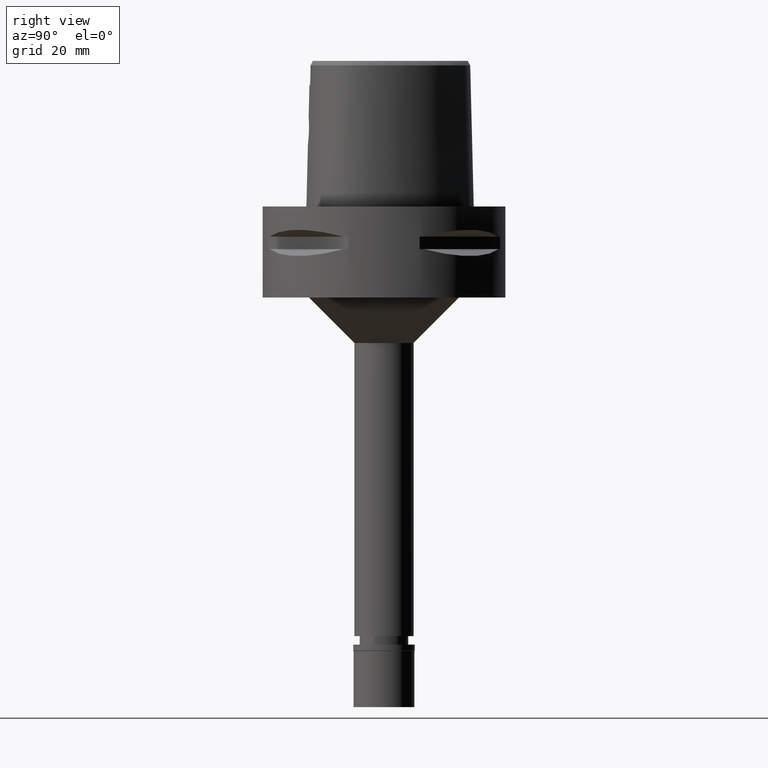
[diagram: clean part render]
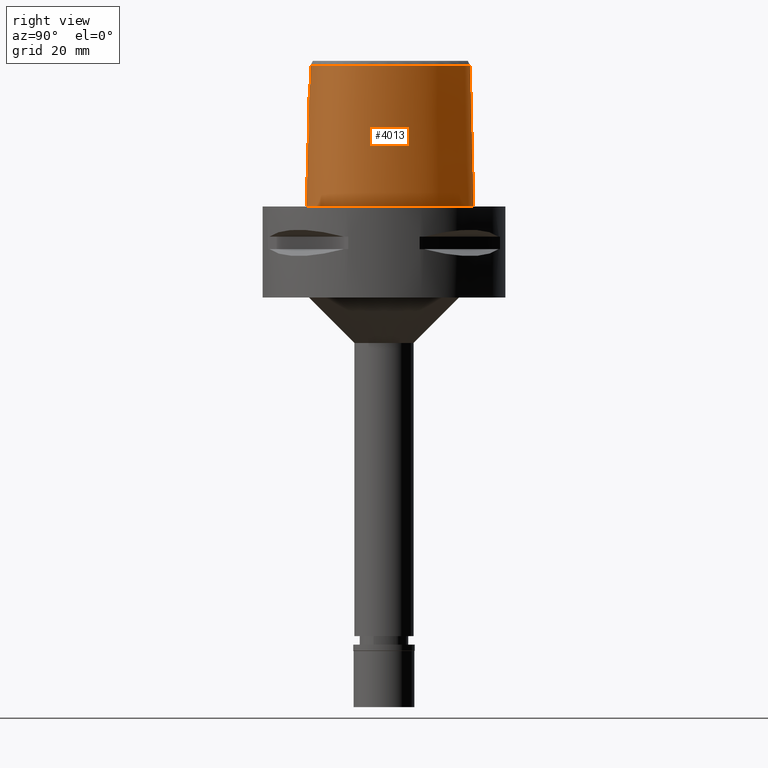
[diagram: same view with one face highlighted and labeled with its STEP entity id]
A machine part, right view. The second image highlights one B-rep face of the part: STEP entity #4013.
In plain terms, the highlighted face is a freeform B-spline surface patch.
Its self-contained STEP definition (entity closure, byte-faithful):
#15 = CARTESIAN_POINT ( 'NONE',  ( 22.86810880156999914, -17.21714034637999902, 31.32395511042999914 ) ) ;
#42 = CARTESIAN_POINT ( 'NONE',  ( 9.105791459224999329, 26.46675913453000106, 15.19677030110000082 ) ) ;
#43 = CARTESIAN_POINT ( 'NONE',  ( 2.697261088284437669, -24.96604596303028600, 21.33198344650132938 ) ) ;
#65 = CARTESIAN_POINT ( 'NONE',  ( 25.65830880232000055, -14.81383149398999954, -0.9304145082307000436 ) ) ;
#66 = CARTESIAN_POINT ( 'NONE',  ( 4.544345534604060433, -24.73984392723427206, 24.75509518056023239 ) ) ;
#91 = CARTESIAN_POINT ( 'NONE',  ( 26.79474625850000180, 1.906447387535000093, -0.9304145082307000436 ) ) ;
#93 = CARTESIAN_POINT ( 'NONE',  ( 2.890648186359348948, -24.95092863274541273, 21.48525694161353172 ) ) ;
#120 = CARTESIAN_POINT ( 'NONE',  ( 3.739368471919711112, -24.86915408846632758, 22.40675187304718818 ) ) ;
#143 = CARTESIAN_POINT ( 'NONE',  ( 3.512978482355693099, -24.74890643940160473, 27.89278862330787234 ) ) ;
#184 = B_SPLINE_CURVE_WITH_KNOTS ( 'NONE', 3,
 ( #1542, #3118, #4635, #2711 ),
 .UNSPECIFIED., .F., .F.,
 ( 4, 4 ),
 ( 0.0000000000000000000, 1.000000000000000000 ),
 .UNSPECIFIED. ) ;
#202 = CARTESIAN_POINT ( 'NONE',  ( 2.592678685478296607, -24.78641481269938041, 28.73923899945383198 ) ) ;
#219 = CARTESIAN_POINT ( 'NONE',  ( 26.53043812451278072, -3.252830914798715334, 46.52070254359992418 ) ) ;
#220 = VERTEX_POINT ( 'NONE', #3888 ) ;
#224 = CARTESIAN_POINT ( 'NONE',  ( 2.832428424601348915, -24.77719445135581466, 28.56165880794238632 ) ) ;
#239 = CARTESIAN_POINT ( 'NONE',  ( 13.63304938780408371, 22.11238814014079423, 46.52071155953441917 ) ) ;
#246 = CARTESIAN_POINT ( 'NONE',  ( 1.372734075386999954E-14, -24.83629963747999980, 29.55000000000000071 ) ) ;
#270 = CARTESIAN_POINT ( 'NONE',  ( 17.84219066873808046, -20.48406917474436284, 46.52069465465727660 ) ) ;
#278 = CARTESIAN_POINT ( 'NONE',  ( 3.237005511786298584, -24.76067832112077838, 28.19756469887087036 ) ) ;
#298 = CARTESIAN_POINT ( 'NONE',  ( 1.375467128702948072, 28.41206022878001747, 46.52071663099752641 ) ) ;
#311 = CARTESIAN_POINT ( 'NONE',  ( -0.8321552616391999502, -24.38153493001000172, 47.45113991977000012 ) ) ;
#366 = CARTESIAN_POINT ( 'NONE',  ( 18.17462484264999745, -20.76404275752999951, 31.32395511042999914 ) ) ;
#397 = CARTESIAN_POINT ( 'NONE',  ( 6.584202213355000666, -24.46732445131999967, 31.32395511042999914 ) ) ;
#419 = CARTESIAN_POINT ( 'NONE',  ( 3.154109046673999828, 29.36302093452000150, -0.9304145082307000436 ) ) ;
#429 = CARTESIAN_POINT ( 'NONE',  ( 22.33885471494222585, 12.89734378305838369, -2.633948435770173957E-06 ) ) ;
#451 = CARTESIAN_POINT ( 'NONE',  ( 25.23075706254999773, 6.836210430863999932, -0.9304145082307000436 ) ) ;
#452 = CARTESIAN_POINT ( 'NONE',  ( 3.051956606900725788, -24.93748982820225990, 21.62510482542859336 ) ) ;
#474 = CARTESIAN_POINT ( 'NONE',  ( 3.067023395837999988, 28.96669973618000071, 15.19677030110000082 ) ) ;
#475 = CARTESIAN_POINT ( 'NONE',  ( 4.547962263617892908, -24.73685171198798471, 24.85950514487635132 ) ) ;
#497 = CARTESIAN_POINT ( 'NONE',  ( 8.683908142319999968, 25.77663438944999896, 47.45113991977000012 ) ) ;
#498 = CARTESIAN_POINT ( 'NONE',  ( 4.549979298456324983, -24.73407938846012399, 24.96161245962009900 ) ) ;
#529 = CARTESIAN_POINT ( 'NONE',  ( 2.192364263587874174, -25.00047163864958577, 21.00192190659234015 ) ) ;
#535 = EDGE_CURVE ( 'NONE', #5001, #558, #4162, .T. ) ;
#555 = CARTESIAN_POINT ( 'NONE',  ( 3.156365463052544396, -24.92830912253881337, 21.72269515073475787 ) ) ;
#558 = VERTEX_POINT ( 'NONE', #3130 ) ;
#561 = DIRECTION ( 'NONE',  ( 9.468170009258231965E-13, 0.02499051293976060906, -0.9996876883622242138 ) ) ;
#575 = CARTESIAN_POINT ( 'NONE',  ( 0.7047156100431000159, 28.82388502797000029, 31.32395511042999914 ) ) ;
#644 = CARTESIAN_POINT ( 'NONE',  ( 24.33934953590684813, -14.68006085516557846, 46.52069803563271222 ) ) ;
#663 = CARTESIAN_POINT ( 'NONE',  ( 20.76159157987547488, 13.99289103071739682, 46.52070817855897644 ) ) ;
#667 = VERTEX_POINT ( 'NONE', #4487 ) ;
#673 = ORIENTED_EDGE ( 'NONE', *, *, #918, .T. ) ;
#709 = CARTESIAN_POINT ( 'NONE',  ( 2.393561154394999946, -25.62160365948000162, -0.9304145082307000436 ) ) ;
#725 = ORIENTED_EDGE ( 'NONE', *, *, #3493, .F. ) ;
#732 = ORIENTED_EDGE ( 'NONE', *, *, #2981, .F. ) ;
#734 = CARTESIAN_POINT ( 'NONE',  ( 21.19046238476000354, -19.29498366068000337, 15.19677030110000082 ) ) ;
#790 = CARTESIAN_POINT ( 'NONE',  ( 6.695047936612000150, -25.26858194698999682, -0.9304145082307000436 ) ) ;
#791 = CARTESIAN_POINT ( 'NONE',  ( 0.5741109003791865506, -25.06046598330698671, 20.47661985235020055 ) ) ;
#818 = CARTESIAN_POINT ( 'NONE',  ( 16.83227267715999531, 18.76477910632999979, 47.45113991977000012 ) ) ;
#827 = CARTESIAN_POINT ( 'NONE',  ( 18.55019652241081118, -21.45394537051418382, -2.633948435770173957E-06 ) ) ;
#841 = CARTESIAN_POINT ( 'NONE',  ( 24.79336081513000067, -16.13554022498000151, -0.9304145082307000436 ) ) ;
#852 = CARTESIAN_POINT ( 'NONE',  ( 9.304563441065136331, 26.79191411885718210, -2.633948435770173957E-06 ) ) ;
#871 = CARTESIAN_POINT ( 'NONE',  ( 6.114741919704999695, 27.99897532370999897, 15.19677030110000082 ) ) ;
#872 = CARTESIAN_POINT ( 'NONE',  ( 4.550159243768820083, -24.72595648767389065, 25.28426205013430916 ) ) ;
#894 = EDGE_CURVE ( 'NONE', #220, #4710, #1196, .T. ) ;
#895 = CARTESIAN_POINT ( 'NONE',  ( 12.70057961977000183, 23.45048167898999836, 31.32395511042999914 ) ) ;
#896 = CARTESIAN_POINT ( 'NONE',  ( 1.726554843533688599, -25.02437791916835508, 20.79030502623852783 ) ) ;
#904 = CARTESIAN_POINT ( 'NONE',  ( 23.43253033493974868, -17.76420414757017952, -2.633948435770173957E-06 ) ) ;
#918 = EDGE_CURVE ( 'NONE', #3978, #220, #3244, .T. ) ;
#919 = CARTESIAN_POINT ( 'NONE',  ( 25.62380423755999814, 1.595558235737000174, 47.45113991977000012 ) ) ;
#920 = CARTESIAN_POINT ( 'NONE',  ( 4.496850936021979273, -24.75618253903773791, 24.29074513878774511 ) ) ;
#931 = CARTESIAN_POINT ( 'NONE',  ( 17.75297956281007217, 19.52218754203904894, -2.633948435770173957E-06 ) ) ;
#950 = CARTESIAN_POINT ( 'NONE',  ( 3.996558060057621820, -24.72854169055285922, 27.19514510551928765 ) ) ;
#985 = CARTESIAN_POINT ( 'NONE',  ( 3.083107003972846094, -24.50056602138366912, 40.00000010061336297 ) ) ;
#1003 = CARTESIAN_POINT ( 'NONE',  ( -0.5537150974278001181, 28.37988169223000057, 47.45113991977000012 ) ) ;
#1019 = CARTESIAN_POINT ( 'NONE',  ( 25.61240997289101173, -12.23358473965911131, 46.52069916262452409 ) ) ;
#1044 = CARTESIAN_POINT ( 'NONE',  ( 26.30769162470354061, -1.593520748816076971, 46.52070310709584788 ) ) ;
#1051 = CARTESIAN_POINT ( 'NONE',  ( 1.883305297007180190, -24.80958828430720686, 29.14211520707400638 ) ) ;
#1070 = CARTESIAN_POINT ( 'NONE',  ( 21.61408639850695224, -17.89738970854853051, 46.52069634514500507 ) ) ;
#1076 = CARTESIAN_POINT ( 'NONE',  ( 3.115833847005023305, -24.76582665838805752, 28.31908668410564189 ) ) ;
#1131 = CARTESIAN_POINT ( 'NONE',  ( 15.15935281694000025, -22.61055603243000078, 15.19677030110000082 ) ) ;
#1160 = CARTESIAN_POINT ( 'NONE',  ( -0.5548491714949000952, -24.38637853515999865, 47.45113991977000012 ) ) ;
#1174 = CARTESIAN_POINT ( 'NONE',  ( 8.153873202540852461, -23.84765792154892239, 46.52069127368189072 ) ) ;
#1196 = B_SPLINE_CURVE_WITH_KNOTS ( 'NONE', 3,
 ( #2806, #2829, #3709, #1613, #1252, #827, #1689, #904, #4415, #4864, #2097, #4815, #4108, #1714, #3683, #4393, #3294, #429, #931, #2497, #852, #2446, #4025, #3198, #3999 ),
 .UNSPECIFIED., .F., .F.,
 ( 4, 1, 1, 1, 1, 1, 1, 1, 1, 1, 1, 1, 1, 1, 1, 1, 1, 1, 1, 1, 1, 1, 4 ),
 ( 0.0000000000000000000, 0.08333333333340001148, 0.1250000000000000000, 0.1666666666667000196, 0.2083333333333000081, 0.2500000000000000000, 0.2916666666666999919, 0.3124999999998999689, 0.3333333333332000326, 0.3541666666666000163, 0.3749999999998999689, 0.4166666666666000163, 0.4583333333332000326, 0.4999999999997999933, 0.5416666666664999852, 0.5833333333331000015, 0.6666666666664999852, 0.7499999999997000177, 0.8333333333329999704, 0.8749999999995999866, 0.9166666666663000340, 0.9583333333329000503, 1.000000000000000000 ),
 .UNSPECIFIED. ) ;
#1218 = CARTESIAN_POINT ( 'NONE',  ( 24.10679980266999678, 6.379205525910999874, 47.45113991977000012 ) ) ;
#1224 = VECTOR ( 'NONE', #561, 1000.000000000000227 ) ;
#1243 = CARTESIAN_POINT ( 'NONE',  ( 2.892852094166000310, 28.17405733949000179, 47.45113991977000012 ) ) ;
#1252 = CARTESIAN_POINT ( 'NONE',  ( 15.29776368685573118, -22.96525396773072814, -2.633948435770173957E-06 ) ) ;
#1258 = CARTESIAN_POINT ( 'NONE',  ( -1.346037188249999996E-11, 28.41206021534999593, 46.52071719450999154 ) ) ;
#1265 = CARTESIAN_POINT ( 'NONE',  ( 24.85610464259000096, 6.683875462546999380, 15.19677030110000082 ) ) ;
#1266 = CARTESIAN_POINT ( 'NONE',  ( 4.537017841947838193, -24.74324082396890034, 24.64916680772596180 ) ) ;
#1289 = CARTESIAN_POINT ( 'NONE',  ( 22.35908247836000129, 12.90902243090000034, -0.9304145082307000436 ) ) ;
#1290 = CARTESIAN_POINT ( 'NONE',  ( 4.172398775490962386, -24.81348664747167021, 23.18477895933824939 ) ) ;
#1301 = CARTESIAN_POINT ( 'NONE',  ( 4.472216720976999405, -24.20009030094000124, 46.52069014668999358 ) ) ;
#1315 = CARTESIAN_POINT ( 'NONE',  ( 22.00846691988000003, 12.70659196191000007, 15.19677030110000082 ) ) ;
#1316 = CARTESIAN_POINT ( 'NONE',  ( 4.186622009783885545, -24.81141158316093609, 23.21777758281611170 ) ) ;
#1321 = CARTESIAN_POINT ( 'NONE',  ( 1.541632511944347694, -24.57506718866358497, 40.00000010061336297 ) ) ;
#1336 = CARTESIAN_POINT ( 'NONE',  ( 3.606429171763809727, -24.88406245827873065, 22.22480142265831660 ) ) ;
#1366 = CARTESIAN_POINT ( 'NONE',  ( 3.373359712598877458, -24.75487047605673041, 28.05365220515685465 ) ) ;
#1372 = CARTESIAN_POINT ( 'NONE',  ( 4.602926386878999132, -24.35121850029999990, 40.00000005214999987 ) ) ;
#1378 = CARTESIAN_POINT ( 'NONE',  ( 4.560197243509509057, -24.30012338778693248, 42.17356341699667155 ) ) ;
#1394 = CARTESIAN_POINT ( 'NONE',  ( 0.5545157691314068771, -24.83629963747999625, 29.55000000000000071 ) ) ;
#1431 = CARTESIAN_POINT ( 'NONE',  ( 6.913370730853128698, 26.74336904842392926, 46.52071437701393108 ) ) ;
#1475 = CARTESIAN_POINT ( 'NONE',  ( 23.44929528211000047, -17.78045352003999824, -0.9304145082307000436 ) ) ;
#1491 = CARTESIAN_POINT ( 'NONE',  ( 3.227783996387108889, -24.76107025147646823, 28.20686722737168139 ) ) ;
#1495 = CARTESIAN_POINT ( 'NONE',  ( -0.8462047057271000483, -25.18772799781000060, 15.19677030110000082 ) ) ;
#1519 = CARTESIAN_POINT ( 'NONE',  ( 11.53552745834999804, -23.37848223950000204, 31.32395511042999914 ) ) ;
#1520 = CARTESIAN_POINT ( 'NONE',  ( 1.011135947205145991, -25.05051087875797933, 20.56129276502818115 ) ) ;
#1542 = CARTESIAN_POINT ( 'NONE',  ( -1.451045074373000022E-08, -24.57504746727000011, 40.00000005214000254 ) ) ;
#1547 = CARTESIAN_POINT ( 'NONE',  ( 11.74634101503999872, -24.15815461169999878, -0.9304145082307000436 ) ) ;
#1565 = B_SPLINE_SURFACE_WITH_KNOTS ( 'NONE', 3, 3, ( 
 ( #5062, #1495, #4749, #311 ),
 ( #2771, #4665, #2692, #1160 ),
 ( #709, #2744, #4725, #4354 ),
 ( #790, #2298, #397, #3488 ),
 ( #1547, #3878, #1519, #5088 ),
 ( #4699, #1131, #2717, #4300 ),
 ( #3369, #3935, #366, #5037 ),
 ( #3124, #734, #4325, #2322 ),
 ( #1475, #3047, #15, #5175 ),
 ( #841, #3259, #2015, #2434 ),
 ( #65, #4480, #3571, #2463 ),
 ( #4041, #2843, #3648, #4094 ),
 ( #1989, #3235, #1677, #3285 ),
 ( #4829, #1655, #3185, #4855 ),
 ( #2064, #4781, #1599, #3991 ),
 ( #4379, #3600, #4806, #4018 ),
 ( #91, #2868, #4459, #919 ),
 ( #451, #1265, #2488, #1218 ),
 ( #1289, #1315, #1705, #2041 ),
 ( #2796, #4435, #2088, #818 ),
 ( #1631, #2404, #895, #4067 ),
 ( #3626, #42, #2511, #497 ),
 ( #3672, #871, #4881, #2892 ),
 ( #419, #474, #3212, #1243 ),
 ( #2820, #4406, #575, #2967 ),
 ( #1822, #2937, #2911, #1003 ),
 ( #2190, #2538, #2162, #2566 ) ),
 .UNSPECIFIED., .F., .F., .F.,
 ( 4, 1, 1, 1, 1, 1, 1, 1, 1, 1, 1, 1, 1, 1, 1, 1, 1, 1, 1, 1, 1, 1, 1, 1, 4 ),
 ( 4, 4 ),
 ( -0.008851417483053999891, 0.0000000000000000000, 0.08333333333340001148, 0.1250000000000000000, 0.1666666666667000196, 0.2083333333333000081, 0.2500000000000000000, 0.2916666666666999919, 0.3124999999998999689, 0.3333333333332000326, 0.3541666666666000163, 0.3749999999998999689, 0.4166666666666000163, 0.4583333333332000326, 0.4999999999997999933, 0.5416666666664999852, 0.5833333333331000015, 0.6666666666664999852, 0.7499999999997000177, 0.8333333333329999704, 0.8749999999995999866, 0.9166666666663000340, 0.9583333333329000503, 1.000000000000000000, 1.012009199036000062 ),
 ( 4.572309409561999967E-09, 0.9999997668122999617 ),
 .UNSPECIFIED. ) ;
#1599 = CARTESIAN_POINT ( 'NONE',  ( 27.06950057460999659, -5.357664960364999729, 31.32395511042999914 ) ) ;
#1613 = CARTESIAN_POINT ( 'NONE',  ( 11.74025987196654874, -24.13566412617133494, -2.633948435770173957E-06 ) ) ;
#1631 = CARTESIAN_POINT ( 'NONE',  ( 13.23332856345000152, 24.06149249962999903, -0.9304145082307000436 ) ) ;
#1632 = CARTESIAN_POINT ( 'NONE',  ( -1.405744793948999911E-12, -25.06378435148999984, 20.44999999999999929 ) ) ;
#1655 = CARTESIAN_POINT ( 'NONE',  ( 27.30517725596000034, -8.703986976424001654, 15.19677030110000082 ) ) ;
#1656 = CARTESIAN_POINT ( 'NONE',  ( 3.418326490945209351, -24.90370471633881877, 21.99337763265276990 ) ) ;
#1666 = ORIENTED_EDGE ( 'NONE', *, *, #3658, .T. ) ;
#1674 = VERTEX_POINT ( 'NONE', #2487 ) ;
#1677 = CARTESIAN_POINT ( 'NONE',  ( 26.34453530919000031, -11.19579296921999934, 31.32395511042999914 ) ) ;
#1678 = CARTESIAN_POINT ( 'NONE',  ( 1.374979210368050042, -25.03889659011747781, 20.66206490747602587 ) ) ;
#1689 = CARTESIAN_POINT ( 'NONE',  ( 21.42129063364858510, -19.59889653705179668, -2.633948435770173957E-06 ) ) ;
#1705 = CARTESIAN_POINT ( 'NONE',  ( 21.65785136139999878, 12.50416149291999979, 31.32395511042999914 ) ) ;
#1706 = CARTESIAN_POINT ( 'NONE',  ( 4.094115463335096017, -24.82458451489376472, 23.01236396660572225 ) ) ;
#1714 = CARTESIAN_POINT ( 'NONE',  ( 27.85475996346920624, -5.337968748343277170, -2.633948435770173957E-06 ) ) ;
#1732 = CARTESIAN_POINT ( 'NONE',  ( 4.523121810470200010, -24.72136632330986572, 25.57645994462142625 ) ) ;
#1754 = CARTESIAN_POINT ( 'NONE',  ( 3.458990831517684938, -24.75121472495267838, 27.95724070546421913 ) ) ;
#1758 = LINE ( 'NONE', #3707, #1224 ) ;
#1795 = CARTESIAN_POINT ( 'NONE',  ( 24.48700992949832056, 6.834036305496095309, 46.52070592457536691 ) ) ;
#1801 = CARTESIAN_POINT ( 'NONE',  ( 1.153626000806827534, -24.82864766317860727, 29.44729853102903760 ) ) ;
#1822 = CARTESIAN_POINT ( 'NONE',  ( -0.6060951003879000432, 29.58848805202999799, -0.9304145082307000436 ) ) ;
#1823 = CARTESIAN_POINT ( 'NONE',  ( 2.284825071826322773, -24.79755434855795215, 28.93755567620459246 ) ) ;
#1843 = CARTESIAN_POINT ( 'NONE',  ( 26.04423705948744328, -10.88022456237437119, 46.52069972612041937 ) ) ;
#1974 = ORIENTED_EDGE ( 'NONE', *, *, #2668, .F. ) ;
#1989 = CARTESIAN_POINT ( 'NONE',  ( 27.12297208056999764, -11.41745865561999906, -0.9304145082307000436 ) ) ;
#2015 = CARTESIAN_POINT ( 'NONE',  ( 24.14246363532000217, -15.65707284225000073, 31.32395511042999914 ) ) ;
#2041 = CARTESIAN_POINT ( 'NONE',  ( 21.30723580292000108, 12.30173102392999951, 47.45113991977000012 ) ) ;
#2042 = CARTESIAN_POINT ( 'NONE',  ( 3.695416430653958084, -24.87420445000563163, 22.34444809527640885 ) ) ;
#2064 = CARTESIAN_POINT ( 'NONE',  ( 27.87808443177999962, -5.337383714047999383, -0.9304145082307000436 ) ) ;
#2065 = CARTESIAN_POINT ( 'NONE',  ( 4.115420520910590518, -24.72394829500681723, 26.95489229166220824 ) ) ;
#2088 = CARTESIAN_POINT ( 'NONE',  ( 17.14519264707000090, 19.02219895253999837, 31.32395511042999914 ) ) ;
#2089 = CARTESIAN_POINT ( 'NONE',  ( 2.955264688608310930, -24.94567926532401003, 21.53931554468389820 ) ) ;
#2097 = CARTESIAN_POINT ( 'NONE',  ( 26.34912743261734036, -13.39455080774210849, -2.633948435770173957E-06 ) ) ;
#2114 = CARTESIAN_POINT ( 'NONE',  ( 3.937353243848379147, -24.84519667286563660, 22.71482954510201324 ) ) ;
#2141 = CARTESIAN_POINT ( 'NONE',  ( 4.517116520646563771, -24.75057419275595905, 24.43553773667434115 ) ) ;
#2162 = CARTESIAN_POINT ( 'NONE',  ( -0.8562942210936000942, 28.76413530214000147, 31.32395511042999914 ) ) ;
#2163 = CARTESIAN_POINT ( 'NONE',  ( 2.653628212344382398, -24.78409939537364437, 28.69623435022997171 ) ) ;
#2190 = CARTESIAN_POINT ( 'NONE',  ( -0.9090099845393000422, 29.56867551674999817, -0.9304145082307000436 ) ) ;
#2210 = CARTESIAN_POINT ( 'NONE',  ( 10.99875819582852010, 24.38035098655962685, 46.52071268652625236 ) ) ;
#2298 = CARTESIAN_POINT ( 'NONE',  ( 6.639625074983000808, -24.86795319915999869, 15.19677030110000082 ) ) ;
#2322 = CARTESIAN_POINT ( 'NONE',  ( 20.70054128836999752, -18.64994419816000004, 47.45113991977000012 ) ) ;
#2351 = FACE_OUTER_BOUND ( 'NONE', #2369, .T. ) ;
#2369 = EDGE_LOOP ( 'NONE', ( #725, #3911, #732, #1666, #2690, #1974, #673, #4335 ) ) ;
#2404 = CARTESIAN_POINT ( 'NONE',  ( 12.96695409161000079, 23.75598708931000047, 15.19677030110000082 ) ) ;
#2434 = CARTESIAN_POINT ( 'NONE',  ( 23.81701504540999892, -15.41783915087999901, 47.45113991977000012 ) ) ;
#2435 = CARTESIAN_POINT ( 'NONE',  ( 1.732112786591196496, -25.02412118468006597, 20.79259001707690757 ) ) ;
#2446 = CARTESIAN_POINT ( 'NONE',  ( 6.262496970401580043, 28.35083013911295069, -2.633948435770173957E-06 ) ) ;
#2463 = CARTESIAN_POINT ( 'NONE',  ( 24.60869380874000001, -14.20783599417000076, 47.45113991977000012 ) ) ;
#2464 = CARTESIAN_POINT ( 'NONE',  ( 3.100243586364403559, -24.93331626314396132, 21.66917441973975400 ) ) ;
#2487 = CARTESIAN_POINT ( 'NONE',  ( -1.451045074373000022E-08, -24.57504746727000011, 40.00000005214000254 ) ) ;
#2488 = CARTESIAN_POINT ( 'NONE',  ( 24.48145222262999710, 6.531540494229000515, 31.32395511042999914 ) ) ;
#2489 = CARTESIAN_POINT ( 'NONE',  ( 3.560464869665263432, -24.88898092548869201, 22.16607190872596078 ) ) ;
#2497 = CARTESIAN_POINT ( 'NONE',  ( 13.21796084896444512, 24.04386723739236231, -2.633948435770173957E-06 ) ) ;
#2511 = CARTESIAN_POINT ( 'NONE',  ( 8.894849800773000581, 26.12169676198999824, 31.32395511042999914 ) ) ;
#2512 = CARTESIAN_POINT ( 'NONE',  ( 4.255303340876161577, -24.72011691775878006, 26.61166571686795379 ) ) ;
#2538 = CARTESIAN_POINT ( 'NONE',  ( -0.8826521028164999727, 29.16640540944000293, 15.19677030110000082 ) ) ;
#2539 = CARTESIAN_POINT ( 'NONE',  ( 3.666127388008825871, -24.74236822830322780, 27.69981209002141753 ) ) ;
#2566 = CARTESIAN_POINT ( 'NONE',  ( -0.8299363393708000247, 28.36186519483000268, 47.45113991977000012 ) ) ;
#2567 = CARTESIAN_POINT ( 'NONE',  ( 2.560989721137916231, -24.78761092133459343, 28.76100236096040774 ) ) ;
#2576 = CARTESIAN_POINT ( 'NONE',  ( 4.516620373932790145, -24.24973711153631939, 44.34712678184333612 ) ) ;
#2632 = CARTESIAN_POINT ( 'NONE',  ( 24.69258566271772182, -14.08975149521994474, 46.52069831738067052 ) ) ;
#2638 = CARTESIAN_POINT ( 'NONE',  ( 2.087632527490743684, -24.80370565429765506, 29.04349576581661196 ) ) ;
#2668 = EDGE_CURVE ( 'NONE', #3978, #3086, #4689, .T. ) ;
#2690 = ORIENTED_EDGE ( 'NONE', *, *, #4357, .T. ) ;
#2692 = CARTESIAN_POINT ( 'NONE',  ( -0.5595330818718999843, -24.78951208297999997, 31.32395511042999914 ) ) ;
#2711 = CARTESIAN_POINT ( 'NONE',  ( 1.372734075386999954E-14, -24.83629963747999980, 29.55000000000000071 ) ) ;
#2717 = CARTESIAN_POINT ( 'NONE',  ( 15.01246783759000003, -22.23414196224999984, 31.32395511042999914 ) ) ;
#2744 = CARTESIAN_POINT ( 'NONE',  ( 2.373865159834999794, -25.21827241695999788, 15.19677030110000082 ) ) ;
#2771 = CARTESIAN_POINT ( 'NONE',  ( -0.5689009026257000334, -25.59577917862999996, -0.9304145082307000436 ) ) ;
#2796 = CARTESIAN_POINT ( 'NONE',  ( 17.77103258688999787, 19.53703864496999998, -0.9304145082307000436 ) ) ;
#2806 = CARTESIAN_POINT ( 'NONE',  ( -1.130678250848000183E-11, -25.57499999999999929, 5.651035195341998828E-14 ) ) ;
#2820 = CARTESIAN_POINT ( 'NONE',  ( 0.7484115208157000598, 29.63215901995000223, -0.9304145082307000436 ) ) ;
#2829 = CARTESIAN_POINT ( 'NONE',  ( 2.676740189128766989, -25.57500006583954644, -2.633948435770173957E-06 ) ) ;
#2843 = CARTESIAN_POINT ( 'NONE',  ( 26.00056139806000033, -13.24168029926999957, 15.19677030110000082 ) ) ;
#2844 = CARTESIAN_POINT ( 'NONE',  ( 4.325577296999667531, -24.79069917426005532, 23.55238152010286257 ) ) ;
#2855 = CARTESIAN_POINT ( 'NONE',  ( -1.405744793948999911E-12, -25.06378435148999984, 20.44999999999999929 ) ) ;
#2868 = CARTESIAN_POINT ( 'NONE',  ( 26.40443225152000295, 1.802817670269000194, 15.19677030110000082 ) ) ;
#2869 = CARTESIAN_POINT ( 'NONE',  ( 4.337077477086219268, -24.71860659089786694, 26.37767366826317428 ) ) ;
#2892 = CARTESIAN_POINT ( 'NONE',  ( 5.801139417478000659, 27.25218155922999941, 47.45113991977000012 ) ) ;
#2893 = CARTESIAN_POINT ( 'NONE',  ( 3.205701519811188227, -24.92381821717546586, 21.77105828208815197 ) ) ;
#2911 = CARTESIAN_POINT ( 'NONE',  ( -0.5711750984144999821, 28.78275047883000326, 31.32395511042999914 ) ) ;
#2912 = CARTESIAN_POINT ( 'NONE',  ( 4.212885333431601431, -24.72121330192673838, 26.71877560768000137 ) ) ;
#2920 = CARTESIAN_POINT ( 'NONE',  ( -1.451045074373000022E-08, -24.57504746727000011, 40.00000005214000254 ) ) ;
#2937 = CARTESIAN_POINT ( 'NONE',  ( -0.5886350994012000681, 29.18561926542999885, 15.19677030110000082 ) ) ;
#2938 = CARTESIAN_POINT ( 'NONE',  ( 3.252660951005722723, -24.76001264346001562, 28.18163816682579181 ) ) ;
#2967 = CARTESIAN_POINT ( 'NONE',  ( 0.6828676546566999628, 28.41974803197999933, 47.45113991977000012 ) ) ;
#2981 = EDGE_CURVE ( 'NONE', #667, #558, #5123, .T. ) ;
#3016 = CARTESIAN_POINT ( 'NONE',  ( 2.410767390552142952, -24.79324877274659045, 28.86155595109426386 ) ) ;
#3033 = CARTESIAN_POINT ( 'NONE',  ( 23.53784508589645696, -15.81022840325492851, 46.52069747213679562 ) ) ;
#3047 = CARTESIAN_POINT ( 'NONE',  ( 23.15870204184000158, -17.49879693321000218, 15.19677030110000082 ) ) ;
#3061 = CARTESIAN_POINT ( 'NONE',  ( 1.986969619756904892, -24.80670454267318092, 29.09445024140496372 ) ) ;
#3086 = VERTEX_POINT ( 'NONE', #3392 ) ;
#3118 = CARTESIAN_POINT ( 'NONE',  ( -4.849311547229183337E-09, -24.66214466419974016, 36.51666702991068547 ) ) ;
#3124 = CARTESIAN_POINT ( 'NONE',  ( 21.43542293296000167, -19.61750339194999881, -0.9304145082307000436 ) ) ;
#3130 = CARTESIAN_POINT ( 'NONE',  ( 4.472216720976999405, -24.20009030094000124, 46.52069014668999358 ) ) ;
#3185 = CARTESIAN_POINT ( 'NONE',  ( 26.90338675210000119, -8.653104851915999873, 31.32395511042999914 ) ) ;
#3198 = CARTESIAN_POINT ( 'NONE',  ( 1.049694963074945697, 29.57500006583937235, -2.633948435770173957E-06 ) ) ;
#3212 = CARTESIAN_POINT ( 'NONE',  ( 2.979937745002000149, 28.57037853783999992, 31.32395511042999914 ) ) ;
#3213 = CARTESIAN_POINT ( 'NONE',  ( 0.2837429639709331819, -25.06378435148999273, 20.45000000000000284 ) ) ;
#3235 = CARTESIAN_POINT ( 'NONE',  ( 26.73375369488000075, -11.30662581242000009, 15.19677030110000082 ) ) ;
#3236 = CARTESIAN_POINT ( 'NONE',  ( 4.043275511959665280, -24.83139551622597807, 22.91194186429524393 ) ) ;
#3244 = LINE ( 'NONE', #2855, #4436 ) ;
#3259 = CARTESIAN_POINT ( 'NONE',  ( 24.46791222522000098, -15.89630653361000157, 15.19677030110000082 ) ) ;
#3260 = CARTESIAN_POINT ( 'NONE',  ( 3.861082105047394908, -24.85463631592572398, 22.58840412900325134 ) ) ;
#3285 = CARTESIAN_POINT ( 'NONE',  ( 25.95531692349999986, -11.08496012601000125, 47.45113991977000012 ) ) ;
#3286 = CARTESIAN_POINT ( 'NONE',  ( 1.672780685870660866, -25.02682213713908510, 20.76857498625472687 ) ) ;
#3294 = CARTESIAN_POINT ( 'NONE',  ( 25.20914256104954276, 6.827421899879437817, -2.633948435770173957E-06 ) ) ;
#3309 = CARTESIAN_POINT ( 'NONE',  ( 4.437987378315741083, -24.71842636459946263, 26.01433587875821729 ) ) ;
#3330 = CARTESIAN_POINT ( 'NONE',  ( 3.329382130118905714, -24.75674668230310971, 28.10179055163413864 ) ) ;
#3369 = CARTESIAN_POINT ( 'NONE',  ( 18.56135208434000106, -21.47443746759999783, -0.9304145082307000436 ) ) ;
#3377 = CARTESIAN_POINT ( 'NONE',  ( 26.56868348264715962, -7.988862950299992605, 46.52070085311221703 ) ) ;
#3392 = CARTESIAN_POINT ( 'NONE',  ( 1.372734075386999954E-14, -24.83629963747999980, 29.55000000000000071 ) ) ;
#3400 = CARTESIAN_POINT ( 'NONE',  ( 26.66096789089036534, -6.450661550928455057, 46.52070141660811942 ) ) ;
#3405 = CARTESIAN_POINT ( 'NONE',  ( 1.813541865602208425, -24.81148519056510438, 29.17313109452807751 ) ) ;
#3453 = CARTESIAN_POINT ( 'NONE',  ( 16.39076485917706449, -21.20751266143251001, 46.52069409116138843 ) ) ;
#3488 = CARTESIAN_POINT ( 'NONE',  ( 6.528779351726999636, -24.06669570349000153, 47.45113991977000012 ) ) ;
#3493 = EDGE_CURVE ( 'NONE', #5001, #4710, #1758, .T. ) ;
#3571 = CARTESIAN_POINT ( 'NONE',  ( 24.95856547327000285, -14.40983449411000095, 31.32395511042999914 ) ) ;
#3582 = CARTESIAN_POINT ( 'NONE',  ( 4.472216720976999405, -24.20009030094000124, 46.52069014668999358 ) ) ;
#3600 = CARTESIAN_POINT ( 'NONE',  ( 27.16099297706000115, -1.823107493823999947, 15.19677030110000082 ) ) ;
#3626 = CARTESIAN_POINT ( 'NONE',  ( 9.316733117677999942, 26.81182150707000034, -0.9304145082307000436 ) ) ;
#3627 = CARTESIAN_POINT ( 'NONE',  ( 1.157035249422594614, -25.04636291852922625, 20.59695966232704833 ) ) ;
#3648 = CARTESIAN_POINT ( 'NONE',  ( 25.63065464997999854, -13.07945040002999981, 31.32395511042999914 ) ) ;
#3649 = CARTESIAN_POINT ( 'NONE',  ( 4.412773899541609701, -24.77516587915418000, 23.85162301166200649 ) ) ;
#3658 = EDGE_CURVE ( 'NONE', #667, #1674, #3844, .T. ) ;
#3672 = CARTESIAN_POINT ( 'NONE',  ( 6.271543170818000057, 28.37237220595000053, -0.9304145082307000436 ) ) ;
#3673 = CARTESIAN_POINT ( 'NONE',  ( 1.952635857166509670, -25.01389984458331028, 20.88358337727337855 ) ) ;
#3683 = CARTESIAN_POINT ( 'NONE',  ( 27.53737518383180571, -1.765624990037506725, -2.633948435770173957E-06 ) ) ;
#3701 = CARTESIAN_POINT ( 'NONE',  ( 4.230858595537660527, -24.72073100376797328, 26.67421065539049607 ) ) ;
#3707 = CARTESIAN_POINT ( 'NONE',  ( -1.346037188249999996E-11, 28.41206021534999593, 46.52071719450999154 ) ) ;
#3709 = CARTESIAN_POINT ( 'NONE',  ( 6.691850472877435507, -25.24546881543191645, -2.633948435770173533E-06 ) ) ;
#3721 = CARTESIAN_POINT ( 'NONE',  ( 2.568983978599216567, -24.97528315391443954, 21.24168007029586036 ) ) ;
#3817 = CARTESIAN_POINT ( 'NONE',  ( 2.744259390201581272, -24.78063453097690072, 28.63060330404749010 ) ) ;
#3836 = CARTESIAN_POINT ( 'NONE',  ( 20.45409312013823566, -18.82869992193610997, 46.52069578164908847 ) ) ;
#3844 = B_SPLINE_CURVE_WITH_KNOTS ( 'NONE', 3,
 ( #1372, #985, #1321, #2920 ),
 .UNSPECIFIED., .F., .F.,
 ( 4, 4 ),
 ( 0.0000000000000000000, 1.000000000000000000 ),
 .UNSPECIFIED. ) ;
#3865 = CARTESIAN_POINT ( 'NONE',  ( -1.346037188249999996E-11, 28.41206021534999593, 46.52071719450999154 ) ) ;
#3878 = CARTESIAN_POINT ( 'NONE',  ( 11.64093423669999972, -23.76831842560000041, 15.19677030110000082 ) ) ;
#3888 = CARTESIAN_POINT ( 'NONE',  ( -1.130678250848000183E-11, -25.57499999999999929, 5.651035195341998828E-14 ) ) ;
#3911 = ORIENTED_EDGE ( 'NONE', *, *, #535, .T. ) ;
#3935 = CARTESIAN_POINT ( 'NONE',  ( 18.36798846350000147, -21.11924011257000089, 15.19677030110000082 ) ) ;
#3978 = VERTEX_POINT ( 'NONE', #4270 ) ;
#3991 = CARTESIAN_POINT ( 'NONE',  ( 26.66520864602000174, -5.367805583523999502, 47.45113991977000012 ) ) ;
#3999 = CARTESIAN_POINT ( 'NONE',  ( 3.059999461773999954E-11, 29.57499999998999840, 5.010806584474999824E-14 ) ) ;
#4013 = ADVANCED_FACE ( 'NONE', ( #2351 ), #1565, .T. ) ;
#4018 = CARTESIAN_POINT ( 'NONE',  ( 26.36214108481999929, -1.945111154185000135, 47.45113991977000012 ) ) ;
#4019 = CARTESIAN_POINT ( 'NONE',  ( 1.483723097888439035, -25.03485232889442713, 20.69751684277656878 ) ) ;
#4025 = CARTESIAN_POINT ( 'NONE',  ( 3.149084888733518106, 29.34015631472895791, -2.633948435770173957E-06 ) ) ;
#4041 = CARTESIAN_POINT ( 'NONE',  ( 26.37046814612999768, -13.40391019850999932, -0.9304145082307000436 ) ) ;
#4042 = CARTESIAN_POINT ( 'NONE',  ( 4.402195190950401127, -24.71810392633526376, 26.16020714300088912 ) ) ;
#4067 = CARTESIAN_POINT ( 'NONE',  ( 12.43420514792999931, 23.14497626866999980, 47.45113991977000012 ) ) ;
#4068 = CARTESIAN_POINT ( 'NONE',  ( 4.141553595727708981, -24.81790787904299123, 23.11546483665215490 ) ) ;
#4094 = CARTESIAN_POINT ( 'NONE',  ( 25.26074790191000119, -12.91722050079000006, 47.45113991977000012 ) ) ;
#4095 = CARTESIAN_POINT ( 'NONE',  ( 1.704163054239501429, -25.02540437729528122, 20.78117410888036787 ) ) ;
#4108 = CARTESIAN_POINT ( 'NONE',  ( 27.68378760405586192, -8.751933602060036677, -2.633948435770173957E-06 ) ) ;
#4123 = CARTESIAN_POINT ( 'NONE',  ( 4.301663164393236372, -24.71910450366888412, 26.48607042045131621 ) ) ;
#4162 = B_SPLINE_CURVE_WITH_KNOTS ( 'NONE', 3,
 ( #3865, #298, #5076, #4686, #1431, #2210, #239, #663, #1795, #1044, #219, #3400, #3377, #1843, #1019, #2632, #644, #3033, #4630, #1070, #3836, #270, #3453, #4793, #1174, #3582 ),
 .UNSPECIFIED., .F., .F.,
 ( 4, 2, 2, 2, 2, 2, 2, 2, 2, 2, 2, 2, 4 ),
 ( 0.0000000000000000000, 0.06249999999999995837, 0.1249999999999999167, 0.2499999999999998890, 0.4999999999999998890, 0.5624999999999998890, 0.6249999999999997780, 0.6874999999999997780, 0.7187499999999997780, 0.7499999999999996669, 0.8124999999999997780, 0.8749999999999998890, 1.000000000000000000 ),
 .UNSPECIFIED. ) ;
#4214 = CARTESIAN_POINT ( 'NONE',  ( 3.005270379488210963, -24.77034733848115167, 28.41951852238053888 ) ) ;
#4270 = CARTESIAN_POINT ( 'NONE',  ( -1.405744793948999911E-12, -25.06378435148999984, 20.44999999999999929 ) ) ;
#4300 = CARTESIAN_POINT ( 'NONE',  ( 14.86558285824999892, -21.85772789207000244, 47.45113991977000012 ) ) ;
#4325 = CARTESIAN_POINT ( 'NONE',  ( 20.94550183656000186, -18.97246392942000170, 31.32395511042999914 ) ) ;
#4335 = ORIENTED_EDGE ( 'NONE', *, *, #894, .T. ) ;
#4348 = CARTESIAN_POINT ( 'NONE',  ( 3.059999461773999954E-11, 29.57499999998999840, 5.010806584474999824E-14 ) ) ;
#4354 = CARTESIAN_POINT ( 'NONE',  ( 2.334473170716000023, -24.41160993190999662, 47.45113991977000012 ) ) ;
#4357 = EDGE_CURVE ( 'NONE', #1674, #3086, #184, .T. ) ;
#4379 = CARTESIAN_POINT ( 'NONE',  ( 27.56041892318000208, -1.762105663644000231, -0.9304145082307000436 ) ) ;
#4393 = CARTESIAN_POINT ( 'NONE',  ( 26.77222820646014512, 1.900468766925591968, -2.633948435770173957E-06 ) ) ;
#4406 = CARTESIAN_POINT ( 'NONE',  ( 0.7265635654293999268, 29.22802202396000126, 15.19677030110000082 ) ) ;
#4415 = CARTESIAN_POINT ( 'NONE',  ( 24.77458498809630072, -16.12173832031961496, -2.633948435770173957E-06 ) ) ;
#4435 = CARTESIAN_POINT ( 'NONE',  ( 17.45811261697999939, 19.27961879876000140, 15.19677030110000082 ) ) ;
#4436 = VECTOR ( 'NONE', #4446, 1000.000000000000114 ) ;
#4437 = CARTESIAN_POINT ( 'NONE',  ( 4.549574022937065365, -24.73494683104343395, 24.92875559372933836 ) ) ;
#4446 = DIRECTION ( 'NONE',  ( -4.840071151696821331E-13, -0.02499051295420905497, -0.9996876883618630583 ) ) ;
#4459 = CARTESIAN_POINT ( 'NONE',  ( 26.01411824453999699, 1.699187953003000073, 31.32395511042999914 ) ) ;
#4460 = CARTESIAN_POINT ( 'NONE',  ( 3.756465253610787869, -24.73852494831078275, 27.57169756947411088 ) ) ;
#4480 = CARTESIAN_POINT ( 'NONE',  ( 25.30843713779000126, -14.61183299405000113, 15.19677030110000082 ) ) ;
#4481 = CARTESIAN_POINT ( 'NONE',  ( 1.609901483200825822, -25.02958960435421432, 20.74402583925023080 ) ) ;
#4487 = CARTESIAN_POINT ( 'NONE',  ( 4.602926386878999132, -24.35121850029999990, 40.00000005214999987 ) ) ;
#4507 = CARTESIAN_POINT ( 'NONE',  ( 4.208386412724203218, -24.72133790640167206, 26.72975093107581657 ) ) ;
#4537 = CARTESIAN_POINT ( 'NONE',  ( 1.717599865388684366, -25.02478947459729142, 20.78664336873092466 ) ) ;
#4630 = CARTESIAN_POINT ( 'NONE',  ( 23.08984995680086172, -16.35075897049786064, 46.52069719038885154 ) ) ;
#4635 = CARTESIAN_POINT ( 'NONE',  ( -4.858130787707317618E-09, -24.74922215084186661, 33.03333351495562908 ) ) ;
#4636 = CARTESIAN_POINT ( 'NONE',  ( 1.779627886571082840, -24.81238721778816014, 29.18772178098352654 ) ) ;
#4665 = CARTESIAN_POINT ( 'NONE',  ( -0.5642169922488000644, -25.19264563081000219, 15.19677030110000082 ) ) ;
#4686 = CARTESIAN_POINT ( 'NONE',  ( 5.530043876417864546, 27.35846726636007986, 46.52071494050981215 ) ) ;
#4689 = B_SPLINE_CURVE_WITH_KNOTS ( 'NONE', 3,
 ( #1632, #3213, #791, #1520, #3627, #1678, #4019, #4481, #3286, #4095, #4537, #896, #2435, #3673, #529, #3721, #43, #93, #2089, #452, #2464, #555, #4857, #4830, #2893, #4882, #1656, #2489, #1336, #2042, #120, #3260, #2114, #3236, #1706, #4068, #1290, #1316, #2844, #3649, #920, #2141, #1266, #66, #475, #4437, #498, #872, #1732, #3309, #4042, #2869, #4123, #2512, #3701, #4909, #2912, #4507, #2065, #950, #4460, #2539, #143, #1754, #1366, #3330, #4933, #2938, #278, #1491, #1076, #4214, #224, #3817, #2163, #202, #2567, #3016, #1823, #2638, #3061, #1051, #3405, #4636, #1801, #1394, #246 ),
 .UNSPECIFIED., .F., .F.,
 ( 4, 2, 2, 1, 1, 1, 1, 2, 2, 2, 2, 2, 1, 1, 2, 2, 2, 2, 2, 2, 1, 2, 2, 2, 2, 1, 2, 2, 2, 2, 1, 1, 1, 2, 2, 2, 2, 2, 1, 1, 2, 2, 2, 1, 2, 2, 2, 1, 2, 2, 4 ),
 ( 0.0000000000000000000, 0.06249999999999177047, 0.09374999999998764877, 0.1093749999999855949, 0.1171874999999845679, 0.1210937499999839295, 0.1230468749999835826, 0.1240234374999833883, 0.1249999999999832079, 0.1874999999999770184, 0.2187499999999739098, 0.2343749999999721334, 0.2421874999999712175, 0.2460937499999708289, 0.2480468749999704126, 0.2499999999999700240, 0.2812499999999648614, 0.2968749999999623079, 0.3124999999999597544, 0.3437499999999546474, 0.3593749999999520384, 0.3671874999999503175, 0.3749999999999486522, 0.4374999999999340528, 0.4687499999999271139, 0.4843749999999240052, 0.4921874999999224509, 0.4999999999999208411, 0.5624999999999084066, 0.5937499999999021894, 0.6093749999998990807, 0.6171874999998976374, 0.6210937499998968603, 0.6230468749998965272, 0.6249999999998961941, 0.6874999999998994138, 0.7187499999999010791, 0.7343749999999020783, 0.7421874999999026334, 0.7460937499999030775, 0.7480468749999036326, 0.7499999999999040767, 0.7812499999999162892, 0.7968749999999223954, 0.8046874999999255040, 0.8124999999999285016, 0.8437499999999411582, 0.8593749999999473754, 0.8671874999999503730, 0.8749999999999532596, 1.000000000000000000 ),
 .UNSPECIFIED. ) ;
#4699 = CARTESIAN_POINT ( 'NONE',  ( 15.30623779628999870, -22.98697010260999818, -0.9304145082307000436 ) ) ;
#4710 = VERTEX_POINT ( 'NONE', #4348 ) ;
#4725 = CARTESIAN_POINT ( 'NONE',  ( 2.354169165275000086, -24.81494117444000125, 31.32395511042999914 ) ) ;
#4749 = CARTESIAN_POINT ( 'NONE',  ( -0.8391799836830999837, -24.78463146390999938, 31.32395511042999914 ) ) ;
#4781 = CARTESIAN_POINT ( 'NONE',  ( 27.47379250319999855, -5.347524337206999157, 15.19677030110000082 ) ) ;
#4793 = CARTESIAN_POINT ( 'NONE',  ( 11.70978320535957096, -23.05272019185640531, 46.52069240067363864 ) ) ;
#4806 = CARTESIAN_POINT ( 'NONE',  ( 26.76156703094000022, -1.884109324004999753, 31.32395511042999914 ) ) ;
#4815 = CARTESIAN_POINT ( 'NONE',  ( 27.10051723727178086, -11.41106447122930234, -2.633948435770173957E-06 ) ) ;
#4829 = CARTESIAN_POINT ( 'NONE',  ( 27.70696775981000215, -8.754869100932999970, -0.9304145082307000436 ) ) ;
#4830 = CARTESIAN_POINT ( 'NONE',  ( 3.196341748950032979, -24.92467674393279253, 21.76178677583780896 ) ) ;
#4855 = CARTESIAN_POINT ( 'NONE',  ( 26.50159624825000293, -8.602222727406999780, 47.45113991977000012 ) ) ;
#4857 = CARTESIAN_POINT ( 'NONE',  ( 3.180359783745173363, -24.92613363770007240, 21.74608895217520299 ) ) ;
#4864 = CARTESIAN_POINT ( 'NONE',  ( 25.63812395573939185, -14.80217776736918189, -2.633948435770173957E-06 ) ) ;
#4881 = CARTESIAN_POINT ( 'NONE',  ( 5.957940668592000222, 27.62557844147000097, 31.32395511042999914 ) ) ;
#4882 = CARTESIAN_POINT ( 'NONE',  ( 3.317903692992028031, -24.91347842919924460, 21.88291014845664151 ) ) ;
#4909 = CARTESIAN_POINT ( 'NONE',  ( 4.220110851308596978, -24.72101730040711587, 26.70095761995009553 ) ) ;
#4933 = CARTESIAN_POINT ( 'NONE',  ( 3.275992991610295668, -24.75902016830567476, 28.15772619068259885 ) ) ;
#4949 = CARTESIAN_POINT ( 'NONE',  ( 4.602926386878999132, -24.35121850029999990, 40.00000005214999987 ) ) ;
#5001 = VERTEX_POINT ( 'NONE', #1258 ) ;
#5037 = CARTESIAN_POINT ( 'NONE',  ( 17.98126122180999786, -20.40884540249999901, 47.45113991977000012 ) ) ;
#5062 = CARTESIAN_POINT ( 'NONE',  ( -0.8532294277709999708, -25.59082453171000182, -0.9304145082307000436 ) ) ;
#5076 = CARTESIAN_POINT ( 'NONE',  ( 2.760678900603946495, 28.19254769430073537, 46.52071606750164534 ) ) ;
#5088 = CARTESIAN_POINT ( 'NONE',  ( 11.43012068000999903, -22.98864605340000011, 47.45113991977000012 ) ) ;
#5123 = B_SPLINE_CURVE_WITH_KNOTS ( 'NONE', 3,
 ( #4949, #1378, #2576, #1301 ),
 .UNSPECIFIED., .F., .F.,
 ( 4, 4 ),
 ( 0.0000000000000000000, 1.000000000000000000 ),
 .UNSPECIFIED. ) ;
#5175 = CARTESIAN_POINT ( 'NONE',  ( 22.57751556130000026, -16.93548375956000029, 47.45113991977000012 ) ) ;